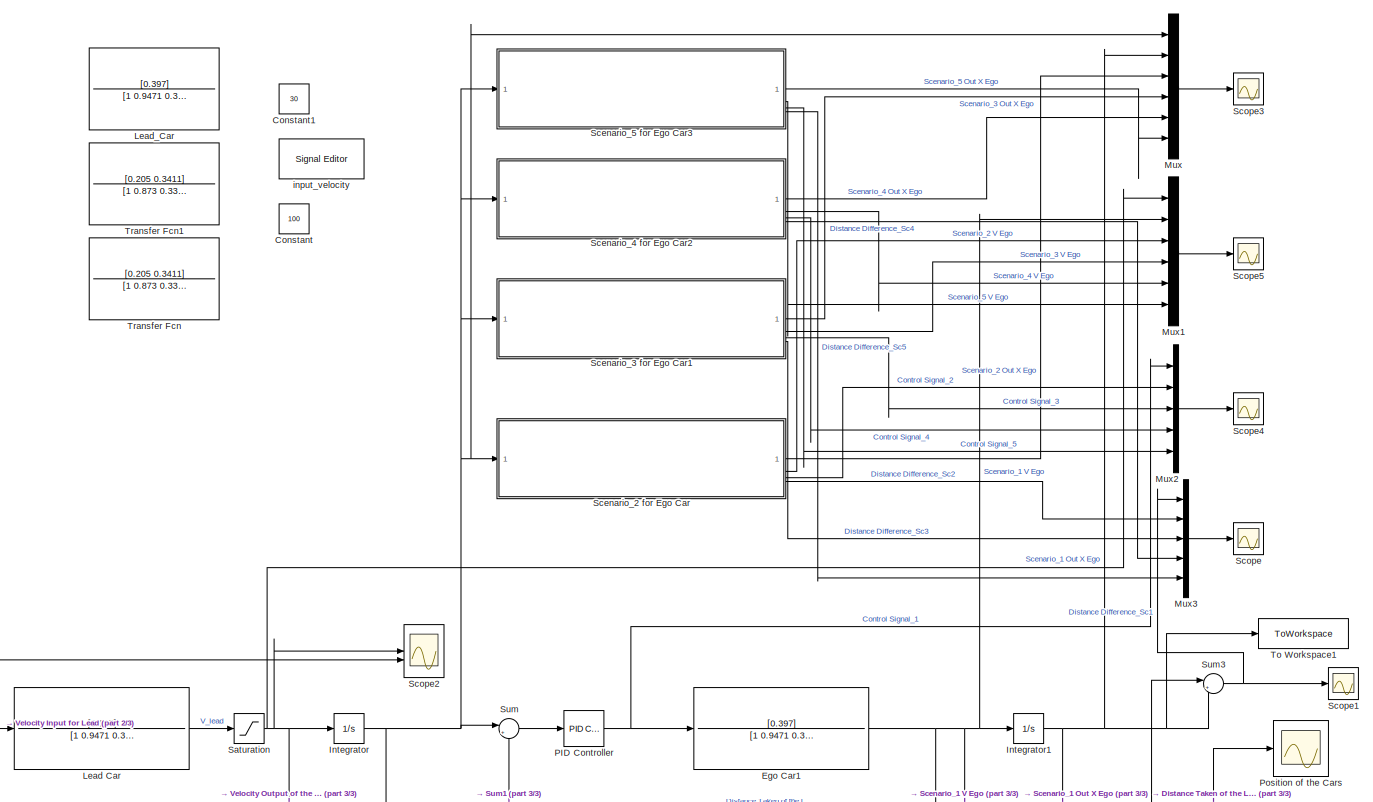
[diagram: root canvas - part 1/3, most of the canvas]
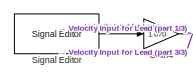
[diagram: root canvas - part 2/3, bottom left region]
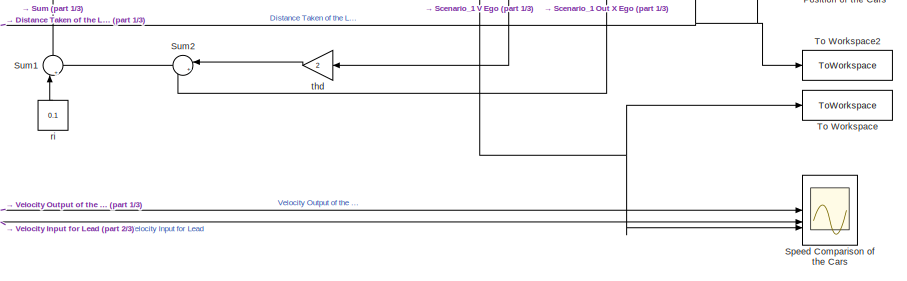
[diagram: root canvas - part 3/3, bottom right region]
MODEL slx_bba84ced5df6
KIND model
CONFIG AbsTol = auto
CONFIG EnableMultiTasking = off
CONFIG FixedStep = auto
CONFIG MaxStep = auto
CONFIG MinStep = auto
CONFIG RelTol = 1e-3
CONFIG SampleTimeConstraint = Unconstrained
CONFIG SolverName = VariableStepAuto
CONFIG StartTime = 0.0
CONFIG StopTime = 70
BLOCK [Constant] Constant
  Commented = on
  Value = 100
BLOCK [Constant] Constant1
  Commented = on
  Value = 30
BLOCK [TransferFcn] Ego Car1
  Denominator = [1 0.9471 0.3943]
  Numerator = [0.397]
BLOCK [Gain] Gain4
  Gain = 1.670
BLOCK [Integrator] Integrator
BLOCK [Integrator] Integrator1
BLOCK [TransferFcn] Lead Car
  Denominator = [1 0.9471 0.3943]
  Numerator = [0.397]
BLOCK [TransferFcn] Lead_Car
  Commented = on
  Denominator = [1 0.9471 0.3943]
  Numerator = [0.397]
BLOCK [Mux] Mux
  DisplayOption = bar
  Inputs = 6
BLOCK [Mux] Mux1
  DisplayOption = bar
  Inputs = 6
BLOCK [Mux] Mux2
  DisplayOption = bar
  Inputs = 5
BLOCK [Mux] Mux3
  DisplayOption = bar
  Inputs = 5
BLOCK [Reference] PID Controller  REF=slpidlib/PID Controller
  LibrarySourceBlock = simulink/Continuous/PID Controller
  SourceBlock = slpidlib/PID Controller
  SourceType = PID 1dof
BLOCK [Scope] Position of the Cars
  Floating = off
  NumInputPorts = 1
  ScopeSpecificationString = Simulink.scopes.TimeScopeBlockCfg('CurrentConfiguration', extmgr.ConfigurationSet(extmgr.Configuration('Core','General UI',true),extmgr.Configuration('Core','Source UI',true),extmgr.Configuration('Sources','WiredSimulink',true),extmgr.Configuration('Visuals','Time Domain',true,'SerializedDisplays',{struct('MinYLimReal','-505.05053','MaxYLimReal','4545.4548','YLabelReal','Distance (meter)','MinYLim...<+1671ch>
BLOCK [Saturate] Saturation
  LowerLimit = 0
  UpperLimit = inf
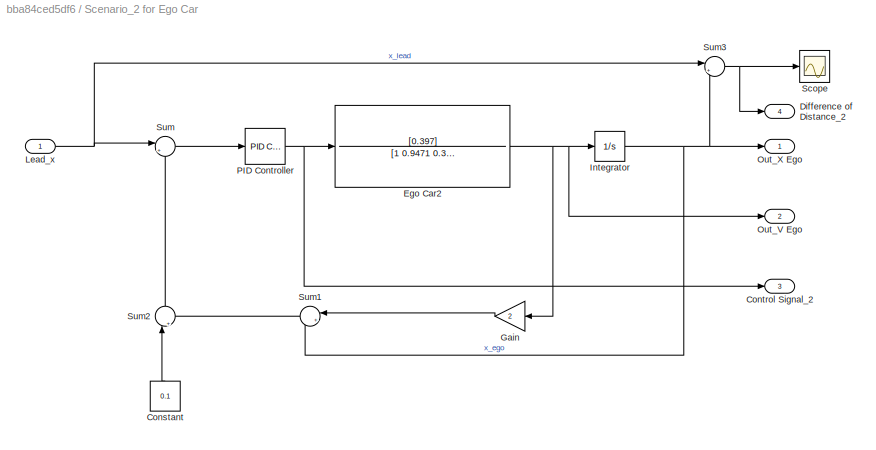
BLOCK [SubSystem] Scenario_2 for Ego Car
BLOCK [Constant] Scenario_2 for Ego Car/Constant
  NameLocation = right
  Value = 0.1
BLOCK [Outport] Scenario_2 for Ego Car/Control Signal_2
  Port = 3
BLOCK [Outport] Scenario_2 for Ego Car/Difference of Distance_2
  Port = 4
BLOCK [TransferFcn] Scenario_2 for Ego Car/Ego Car2
  Denominator = [1 0.9471 0.3943]
  Numerator = [0.397]
BLOCK [Gain] Scenario_2 for Ego Car/Gain
  Gain = 2
  NameLocation = top
BLOCK [Integrator] Scenario_2 for Ego Car/Integrator
BLOCK [Inport] Scenario_2 for Ego Car/Lead_x
BLOCK [Outport] Scenario_2 for Ego Car/Out_V Ego
  Port = 2
BLOCK [Outport] Scenario_2 for Ego Car/Out_X Ego
BLOCK [Reference] Scenario_2 for Ego Car/PID Controller  REF=slpidlib/PID Controller
  LibrarySourceBlock = simulink/Continuous/PID Controller
  SourceBlock = slpidlib/PID Controller
  SourceType = PID 1dof
BLOCK [Scope] Scenario_2 for Ego Car/Scope
  Floating = off
  NumInputPorts = 1
  ScopeSpecificationString = Simulink.scopes.TimeScopeBlockCfg('CurrentConfiguration', extmgr.ConfigurationSet(extmgr.Configuration('Core','General UI',true),extmgr.Configuration('Core','Source UI',true),extmgr.Configuration('Sources','WiredSimulink',true,'DataLoggingVariableName','ScopeData2'),extmgr.Configuration('Visuals','Time Domain',true,'SerializedDisplays',{struct('MinYLimReal','-29.53709','MaxYLimReal','265.83383','Y...<+1462ch>
BLOCK [Sum] Scenario_2 for Ego Car/Sum
  Inputs = |+-
BLOCK [Sum] Scenario_2 for Ego Car/Sum1
  Inputs = |++
  NameLocation = top
BLOCK [Sum] Scenario_2 for Ego Car/Sum2
  Inputs = |++
  NameLocation = right
BLOCK [Sum] Scenario_2 for Ego Car/Sum3
  Inputs = |+-
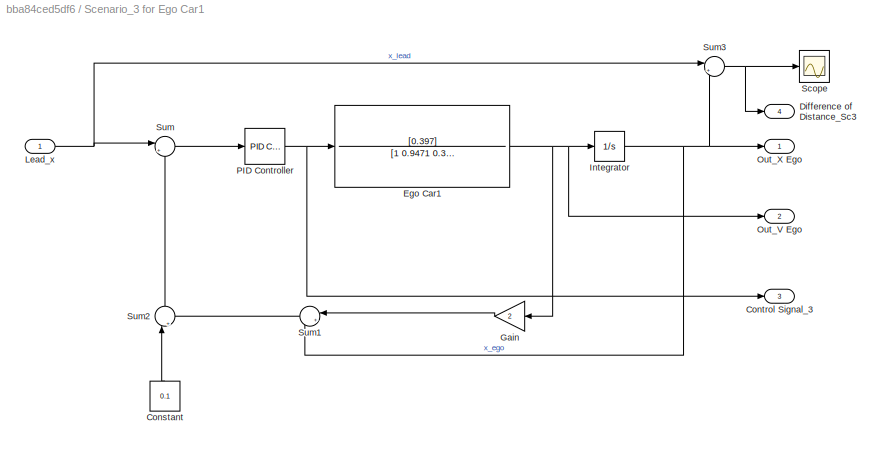
BLOCK [SubSystem] Scenario_3 for Ego Car1
BLOCK [Constant] Scenario_3 for Ego Car1/Constant
  NameLocation = right
  Value = 0.1
BLOCK [Outport] Scenario_3 for Ego Car1/Control Signal_3
  Port = 3
BLOCK [Outport] Scenario_3 for Ego Car1/Difference of Distance_Sc3
  Port = 4
BLOCK [TransferFcn] Scenario_3 for Ego Car1/Ego Car1
  Denominator = [1 0.9471 0.3943]
  Numerator = [0.397]
BLOCK [Gain] Scenario_3 for Ego Car1/Gain
  Gain = 2
  NameLocation = top
BLOCK [Integrator] Scenario_3 for Ego Car1/Integrator
BLOCK [Inport] Scenario_3 for Ego Car1/Lead_x
BLOCK [Outport] Scenario_3 for Ego Car1/Out_V Ego
  Port = 2
BLOCK [Outport] Scenario_3 for Ego Car1/Out_X Ego
BLOCK [Reference] Scenario_3 for Ego Car1/PID Controller  REF=slpidlib/PID Controller
  LibrarySourceBlock = simulink/Continuous/PID Controller
  SourceBlock = slpidlib/PID Controller
  SourceType = PID 1dof
BLOCK [Scope] Scenario_3 for Ego Car1/Scope
  Floating = off
  NumInputPorts = 1
  ScopeSpecificationString = Simulink.scopes.TimeScopeBlockCfg('CurrentConfiguration', extmgr.ConfigurationSet(extmgr.Configuration('Core','General UI',true),extmgr.Configuration('Core','Source UI',true),extmgr.Configuration('Sources','WiredSimulink',true,'DataLoggingVariableName','ScopeData2'),extmgr.Configuration('Visuals','Time Domain',true,'SerializedDisplays',{struct('MinYLimReal','-27.02254','MaxYLimReal','243.20282','Y...<+1468ch>  <repeated x3 — deduplicated; at blocks: Scope>
BLOCK [Sum] Scenario_3 for Ego Car1/Sum
  Inputs = |+-
BLOCK [Sum] Scenario_3 for Ego Car1/Sum1
  Inputs = |++
  NameLocation = top
BLOCK [Sum] Scenario_3 for Ego Car1/Sum2
  Inputs = |++
  NameLocation = right
BLOCK [Sum] Scenario_3 for Ego Car1/Sum3
  Inputs = |+-
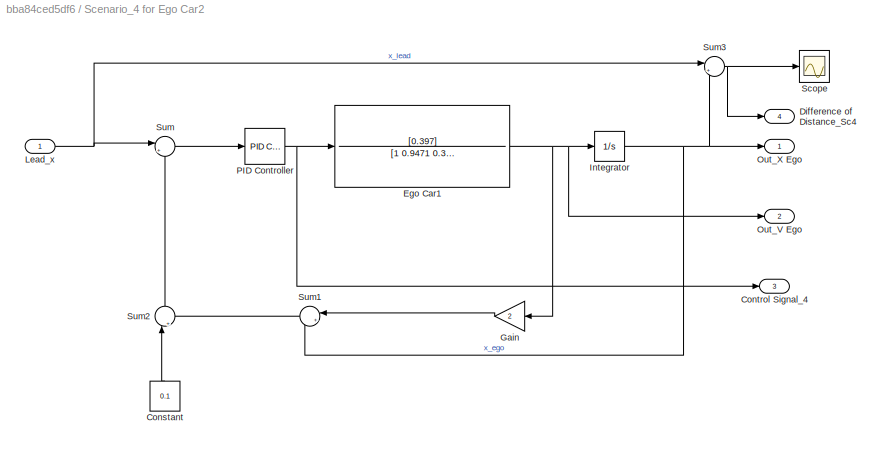
BLOCK [SubSystem] Scenario_4 for Ego Car2
BLOCK [Constant] Scenario_4 for Ego Car2/Constant
  NameLocation = right
  Value = 0.1
BLOCK [Outport] Scenario_4 for Ego Car2/Control Signal_4
  Port = 3
BLOCK [Outport] Scenario_4 for Ego Car2/Difference of Distance_Sc4
  Port = 4
BLOCK [TransferFcn] Scenario_4 for Ego Car2/Ego Car1
  Denominator = [1 0.9471 0.3943]
  Numerator = [0.397]
BLOCK [Gain] Scenario_4 for Ego Car2/Gain
  Gain = 2
  NameLocation = top
BLOCK [Integrator] Scenario_4 for Ego Car2/Integrator
BLOCK [Inport] Scenario_4 for Ego Car2/Lead_x
BLOCK [Outport] Scenario_4 for Ego Car2/Out_V Ego
  Port = 2
BLOCK [Outport] Scenario_4 for Ego Car2/Out_X Ego
BLOCK [Reference] Scenario_4 for Ego Car2/PID Controller  REF=slpidlib/PID Controller
  LibrarySourceBlock = simulink/Continuous/PID Controller
  SourceBlock = slpidlib/PID Controller
  SourceType = PID 1dof
BLOCK [Scope] Scenario_4 for Ego Car2/Scope
  Floating = off
  NumInputPorts = 1
BLOCK [Sum] Scenario_4 for Ego Car2/Sum
  Inputs = |+-
BLOCK [Sum] Scenario_4 for Ego Car2/Sum1
  Inputs = |++
  NameLocation = top
BLOCK [Sum] Scenario_4 for Ego Car2/Sum2
  Inputs = |++
  NameLocation = right
BLOCK [Sum] Scenario_4 for Ego Car2/Sum3
  Inputs = |+-
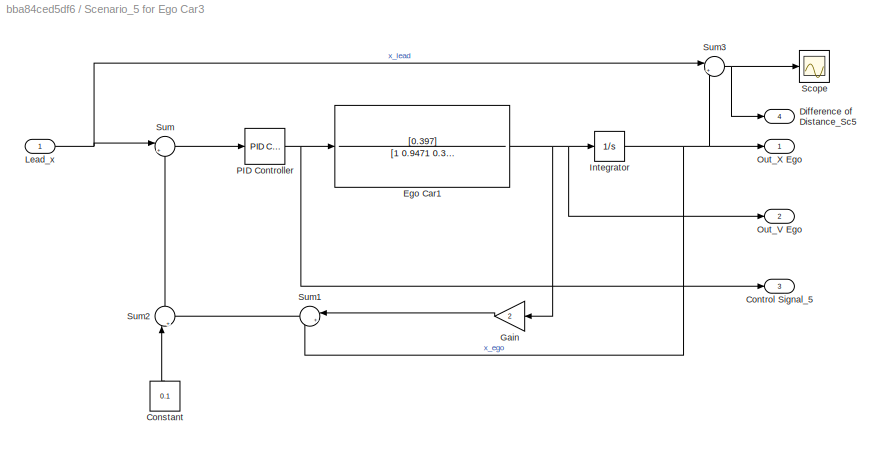
BLOCK [SubSystem] Scenario_5 for Ego Car3
BLOCK [Constant] Scenario_5 for Ego Car3/Constant
  NameLocation = right
  Value = 0.1
BLOCK [Outport] Scenario_5 for Ego Car3/Control Signal_5
  Port = 3
BLOCK [Outport] Scenario_5 for Ego Car3/Difference of Distance_Sc5
  Port = 4
BLOCK [TransferFcn] Scenario_5 for Ego Car3/Ego Car1
  Denominator = [1 0.9471 0.3943]
  Numerator = [0.397]
BLOCK [Gain] Scenario_5 for Ego Car3/Gain
  Gain = 2
  NameLocation = top
BLOCK [Integrator] Scenario_5 for Ego Car3/Integrator
BLOCK [Inport] Scenario_5 for Ego Car3/Lead_x
BLOCK [Outport] Scenario_5 for Ego Car3/Out_V Ego
  Port = 2
BLOCK [Outport] Scenario_5 for Ego Car3/Out_X Ego
BLOCK [Reference] Scenario_5 for Ego Car3/PID Controller  REF=slpidlib/PID Controller
  LibrarySourceBlock = simulink/Continuous/PID Controller
  SourceBlock = slpidlib/PID Controller
  SourceType = PID 1dof
BLOCK [Scope] Scenario_5 for Ego Car3/Scope
  Floating = off
  NumInputPorts = 1
BLOCK [Sum] Scenario_5 for Ego Car3/Sum
  Inputs = |+-
BLOCK [Sum] Scenario_5 for Ego Car3/Sum1
  Inputs = |++
  NameLocation = top
BLOCK [Sum] Scenario_5 for Ego Car3/Sum2
  Inputs = |++
  NameLocation = right
BLOCK [Sum] Scenario_5 for Ego Car3/Sum3
  Inputs = |+-
BLOCK [Scope] Scope
  Floating = off
  NumInputPorts = 1
  ScopeSpecificationString = Simulink.scopes.TimeScopeBlockCfg('CurrentConfiguration', extmgr.ConfigurationSet(extmgr.Configuration('Core','General UI',true),extmgr.Configuration('Core','Source UI',true),extmgr.Configuration('Sources','WiredSimulink',true,'DataLoggingVariableName','ScopeData6'),extmgr.Configuration('Visuals','Time Domain',true,'SerializedDisplays',{struct('MinYLimReal','-81.91068','MaxYLimReal','418.59075','Y...<+1870ch>
BLOCK [Scope] Scope1
  Floating = off
  NumInputPorts = 1
  ScopeSpecificationString = Simulink.scopes.TimeScopeBlockCfg('CurrentConfiguration', extmgr.ConfigurationSet(extmgr.Configuration('Core','General UI',true),extmgr.Configuration('Core','Source UI',true),extmgr.Configuration('Sources','WiredSimulink',true,'DataLoggingVariableName','ScopeData1'),extmgr.Configuration('Visuals','Time Domain',true,'SerializedDisplays',{struct('MinYLimReal','-27.0309','MaxYLimReal','243.27814','YL...<+1680ch>
BLOCK [Scope] Scope2
  Floating = off
  NumInputPorts = 2
  ScopeSpecificationString = Simulink.scopes.TimeScopeBlockCfg('CurrentConfiguration', extmgr.ConfigurationSet(extmgr.Configuration('Core','General UI',true),extmgr.Configuration('Core','Source UI',true),extmgr.Configuration('Sources','WiredSimulink',true,'DataLoggingVariableName','ScopeData1'),extmgr.Configuration('Visuals','Time Domain',true,'SerializedDisplays',{struct('MinYLimReal','-12.95271','MaxYLimReal','116.57435','Y...<+1650ch>
BLOCK [Scope] Scope3
  Floating = off
  NumInputPorts = 1
  ScopeSpecificationString = Simulink.scopes.TimeScopeBlockCfg('CurrentConfiguration', extmgr.ConfigurationSet(extmgr.Configuration('Core','General UI',true),extmgr.Configuration('Core','Source UI',true),extmgr.Configuration('Sources','WiredSimulink',true,'DataLoggingVariableName','ScopeData3'),extmgr.Configuration('Visuals','Time Domain',true,'SerializedDisplays',{struct('MinYLimReal','-373.36721','MaxYLimReal','4410.24924',...<+1880ch>
BLOCK [Scope] Scope4
  Floating = off
  NumInputPorts = 1
  ScopeSpecificationString = Simulink.scopes.TimeScopeBlockCfg('CurrentConfiguration', extmgr.ConfigurationSet(extmgr.Configuration('Core','General UI',true),extmgr.Configuration('Core','Source UI',true),extmgr.Configuration('Sources','WiredSimulink',true,'DataLoggingVariableName','ScopeData4'),extmgr.Configuration('Visuals','Time Domain',true,'SerializedDisplays',{struct('MinYLimReal','-27.31156','MaxYLimReal','115.92632','Y...<+1730ch>
BLOCK [Scope] Scope5
  Floating = off
  NumInputPorts = 1
  ScopeSpecificationString = Simulink.scopes.TimeScopeBlockCfg('CurrentConfiguration', extmgr.ConfigurationSet(extmgr.Configuration('Core','General UI',true),extmgr.Configuration('Core','Source UI',true),extmgr.Configuration('Sources','WiredSimulink',true,'DataLoggingVariableName','ScopeData5'),extmgr.Configuration('Visuals','Time Domain',true,'SerializedDisplays',{struct('MinYLimReal','-12.99524','MaxYLimReal','116.57908','Y...<+1825ch>
BLOCK [Reference] Signal Editor  REF=SignalEditorBlockLib/Signal Editor
  LibrarySourceBlock = simulink/Sources/Signal Editor
  SourceBlock = SignalEditorBlockLib/Signal Editor
  SourceType = SignalEditor
  UserDataPersistent = on
BLOCK [Scope] Speed Comparison of the Cars
  Floating = off
  NumInputPorts = 3
  ScopeSpecificationString = Simulink.scopes.TimeScopeBlockCfg('CurrentConfiguration', extmgr.ConfigurationSet(extmgr.Configuration('Core','General UI',true),extmgr.Configuration('Core','Source UI',true),extmgr.Configuration('Sources','WiredSimulink',true,'DataLoggingVariableName','ScopeData1'),extmgr.Configuration('Visuals','Time Domain',true,'SerializedDisplays',{struct('MinYLimReal','-13.96506','MaxYLimReal','112.50474','Y...<+1728ch>
BLOCK [Sum] Sum
  Inputs = |+-
BLOCK [Sum] Sum1
  Inputs = |++
  NameLocation = right
BLOCK [Sum] Sum2
  Inputs = |++
  NameLocation = top
BLOCK [Sum] Sum3
  Inputs = |+-
BLOCK [ToWorkspace] To Workspace
  FixptAsFi = on
  MaxDataPoints = inf
  SampleTime = 0.001
  SaveFormat = Timeseries
  VariableName = acc_v
BLOCK [ToWorkspace] To Workspace1
  FixptAsFi = on
  MaxDataPoints = inf
  SampleTime = -1
  SaveFormat = Timeseries
  VariableName = x_ego
BLOCK [ToWorkspace] To Workspace2
  FixptAsFi = on
  MaxDataPoints = inf
  SampleTime = -1
  SaveFormat = Timeseries
  VariableName = x_lead
BLOCK [TransferFcn] Transfer Fcn
  Commented = on
  Denominator = [1 0.873 0.3388]
  Numerator = [0.205 0.3411]
BLOCK [TransferFcn] Transfer Fcn1
  Commented = on
  Denominator = [1 0.873 0.3388]
  Numerator = [0.205 0.3411]
BLOCK [Reference] input_velocity  REF=SignalEditorBlockLib/Signal Editor
  Commented = on
  LibrarySourceBlock = simulink/Sources/Signal Editor
  SourceBlock = SignalEditorBlockLib/Signal Editor
  SourceType = SignalEditor
  UserDataPersistent = on
BLOCK [Constant] ri
  NameLocation = right
  Value = 0.1
BLOCK [Gain] thd
  Gain = 2
  NameLocation = top
NET Ego Car1:1 -> Integrator1:1, Mux1:2, Speed Comparison of the Cars:3, To Workspace:1, thd:1
NET Gain4:1 -> Lead Car:1, Scope2:2, Speed Comparison of the Cars:2
NET Integrator1:1 -> Mux:2, Sum2:2, Sum3:2, To Workspace1:1
NET Integrator:1 -> Mux:1, Position of the Cars:1, Scenario_2 for Ego Car:1, Scenario_3 for Ego Car1:1, Scenario_4 for Ego Car2:1, Scenario_5 for Ego Car3:1, Sum3:1, Sum:1, To Workspace2:1
LINE Lead Car:1 -> Saturation:1
LINE Mux1:1 -> Scope5:1
LINE Mux2:1 -> Scope4:1
LINE Mux3:1 -> Scope:1
LINE Mux:1 -> Scope3:1
NET PID Controller:1 -> Ego Car1:1, Mux2:1
NET Saturation:1 -> Integrator:1, Mux1:1, Scope2:1, Speed Comparison of the Cars:1
LINE Scenario_2 for Ego Car/Constant:1 -> Scenario_2 for Ego Car/Sum2:1
NET Scenario_2 for Ego Car/Ego Car2:1 -> Scenario_2 for Ego Car/Gain:1, Scenario_2 for Ego Car/Integrator:1, Scenario_2 for Ego Car/Out_V Ego:1
LINE Scenario_2 for Ego Car/Gain:1 -> Scenario_2 for Ego Car/Sum1:1
NET Scenario_2 for Ego Car/Integrator:1 -> Scenario_2 for Ego Car/Out_X Ego:1, Scenario_2 for Ego Car/Sum1:2, Scenario_2 for Ego Car/Sum3:2
NET Scenario_2 for Ego Car/Lead_x:1 -> Scenario_2 for Ego Car/Sum3:1, Scenario_2 for Ego Car/Sum:1
NET Scenario_2 for Ego Car/PID Controller:1 -> Scenario_2 for Ego Car/Control Signal_2:1, Scenario_2 for Ego Car/Ego Car2:1
LINE Scenario_2 for Ego Car/Sum1:1 -> Scenario_2 for Ego Car/Sum2:2
LINE Scenario_2 for Ego Car/Sum2:1 -> Scenario_2 for Ego Car/Sum:2
NET Scenario_2 for Ego Car/Sum3:1 -> Scenario_2 for Ego Car/Difference of Distance_2:1, Scenario_2 for Ego Car/Scope:1
LINE Scenario_2 for Ego Car/Sum:1 -> Scenario_2 for Ego Car/PID Controller:1
LINE Scenario_2 for Ego Car:1 -> Mux:3
LINE Scenario_2 for Ego Car:2 -> Mux1:3
LINE Scenario_2 for Ego Car:3 -> Mux2:2
LINE Scenario_2 for Ego Car:4 -> Mux3:2
LINE Scenario_3 for Ego Car1/Constant:1 -> Scenario_3 for Ego Car1/Sum2:1
NET Scenario_3 for Ego Car1/Ego Car1:1 -> Scenario_3 for Ego Car1/Gain:1, Scenario_3 for Ego Car1/Integrator:1, Scenario_3 for Ego Car1/Out_V Ego:1
LINE Scenario_3 for Ego Car1/Gain:1 -> Scenario_3 for Ego Car1/Sum1:1
NET Scenario_3 for Ego Car1/Integrator:1 -> Scenario_3 for Ego Car1/Out_X Ego:1, Scenario_3 for Ego Car1/Sum1:2, Scenario_3 for Ego Car1/Sum3:2
NET Scenario_3 for Ego Car1/Lead_x:1 -> Scenario_3 for Ego Car1/Sum3:1, Scenario_3 for Ego Car1/Sum:1
NET Scenario_3 for Ego Car1/PID Controller:1 -> Scenario_3 for Ego Car1/Control Signal_3:1, Scenario_3 for Ego Car1/Ego Car1:1
LINE Scenario_3 for Ego Car1/Sum1:1 -> Scenario_3 for Ego Car1/Sum2:2
LINE Scenario_3 for Ego Car1/Sum2:1 -> Scenario_3 for Ego Car1/Sum:2
NET Scenario_3 for Ego Car1/Sum3:1 -> Scenario_3 for Ego Car1/Difference of Distance_Sc3:1, Scenario_3 for Ego Car1/Scope:1
LINE Scenario_3 for Ego Car1/Sum:1 -> Scenario_3 for Ego Car1/PID Controller:1
LINE Scenario_3 for Ego Car1:1 -> Mux:4
LINE Scenario_3 for Ego Car1:2 -> Mux1:4
LINE Scenario_3 for Ego Car1:3 -> Mux2:3
LINE Scenario_3 for Ego Car1:4 -> Mux3:3
LINE Scenario_4 for Ego Car2/Constant:1 -> Scenario_4 for Ego Car2/Sum2:1
NET Scenario_4 for Ego Car2/Ego Car1:1 -> Scenario_4 for Ego Car2/Gain:1, Scenario_4 for Ego Car2/Integrator:1, Scenario_4 for Ego Car2/Out_V Ego:1
LINE Scenario_4 for Ego Car2/Gain:1 -> Scenario_4 for Ego Car2/Sum1:1
NET Scenario_4 for Ego Car2/Integrator:1 -> Scenario_4 for Ego Car2/Out_X Ego:1, Scenario_4 for Ego Car2/Sum1:2, Scenario_4 for Ego Car2/Sum3:2
NET Scenario_4 for Ego Car2/Lead_x:1 -> Scenario_4 for Ego Car2/Sum3:1, Scenario_4 for Ego Car2/Sum:1
NET Scenario_4 for Ego Car2/PID Controller:1 -> Scenario_4 for Ego Car2/Control Signal_4:1, Scenario_4 for Ego Car2/Ego Car1:1
LINE Scenario_4 for Ego Car2/Sum1:1 -> Scenario_4 for Ego Car2/Sum2:2
LINE Scenario_4 for Ego Car2/Sum2:1 -> Scenario_4 for Ego Car2/Sum:2
NET Scenario_4 for Ego Car2/Sum3:1 -> Scenario_4 for Ego Car2/Difference of Distance_Sc4:1, Scenario_4 for Ego Car2/Scope:1
LINE Scenario_4 for Ego Car2/Sum:1 -> Scenario_4 for Ego Car2/PID Controller:1
LINE Scenario_4 for Ego Car2:1 -> Mux:5
LINE Scenario_4 for Ego Car2:2 -> Mux1:5
LINE Scenario_4 for Ego Car2:3 -> Mux2:4
LINE Scenario_4 for Ego Car2:4 -> Mux3:4
LINE Scenario_5 for Ego Car3/Constant:1 -> Scenario_5 for Ego Car3/Sum2:1
NET Scenario_5 for Ego Car3/Ego Car1:1 -> Scenario_5 for Ego Car3/Gain:1, Scenario_5 for Ego Car3/Integrator:1, Scenario_5 for Ego Car3/Out_V Ego:1
LINE Scenario_5 for Ego Car3/Gain:1 -> Scenario_5 for Ego Car3/Sum1:1
NET Scenario_5 for Ego Car3/Integrator:1 -> Scenario_5 for Ego Car3/Out_X Ego:1, Scenario_5 for Ego Car3/Sum1:2, Scenario_5 for Ego Car3/Sum3:2
NET Scenario_5 for Ego Car3/Lead_x:1 -> Scenario_5 for Ego Car3/Sum3:1, Scenario_5 for Ego Car3/Sum:1
NET Scenario_5 for Ego Car3/PID Controller:1 -> Scenario_5 for Ego Car3/Control Signal_5:1, Scenario_5 for Ego Car3/Ego Car1:1
LINE Scenario_5 for Ego Car3/Sum1:1 -> Scenario_5 for Ego Car3/Sum2:2
LINE Scenario_5 for Ego Car3/Sum2:1 -> Scenario_5 for Ego Car3/Sum:2
NET Scenario_5 for Ego Car3/Sum3:1 -> Scenario_5 for Ego Car3/Difference of Distance_Sc5:1, Scenario_5 for Ego Car3/Scope:1
LINE Scenario_5 for Ego Car3/Sum:1 -> Scenario_5 for Ego Car3/PID Controller:1
LINE Scenario_5 for Ego Car3:1 -> Mux:6
LINE Scenario_5 for Ego Car3:2 -> Mux1:6
LINE Scenario_5 for Ego Car3:3 -> Mux2:5
LINE Scenario_5 for Ego Car3:4 -> Mux3:5
LINE Signal Editor:1 -> Gain4:1
LINE Sum1:1 -> Sum:2
LINE Sum2:1 -> Sum1:2
NET Sum3:1 -> Mux3:1, Scope1:1
LINE Sum:1 -> PID Controller:1
LINE ri:1 -> Sum1:1
LINE thd:1 -> Sum2:1
note: NET lines group one-source signal fan-out (src -> all destinations, sorted); 1:1 wires keep LINE
